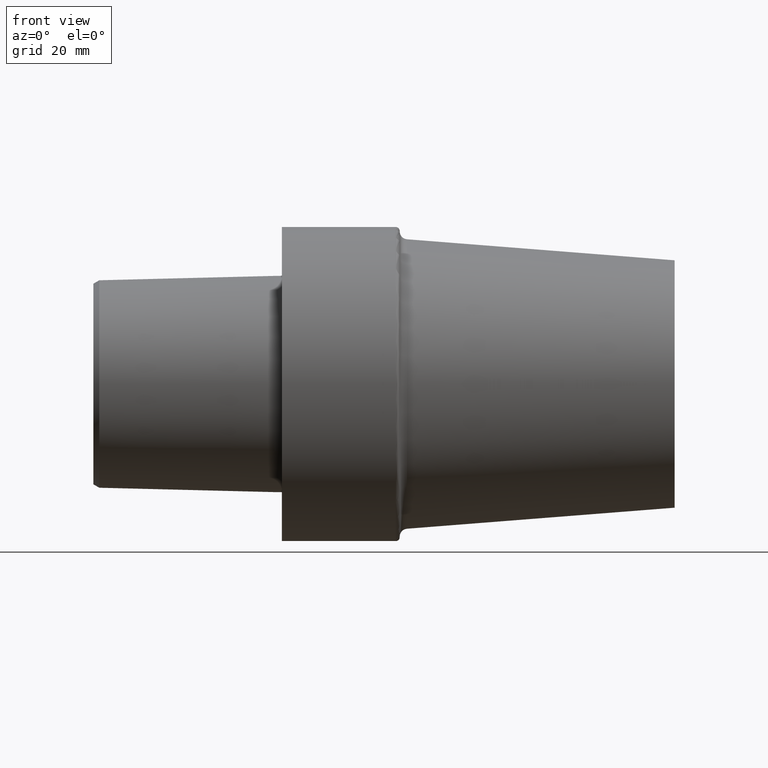
[diagram: clean part render]
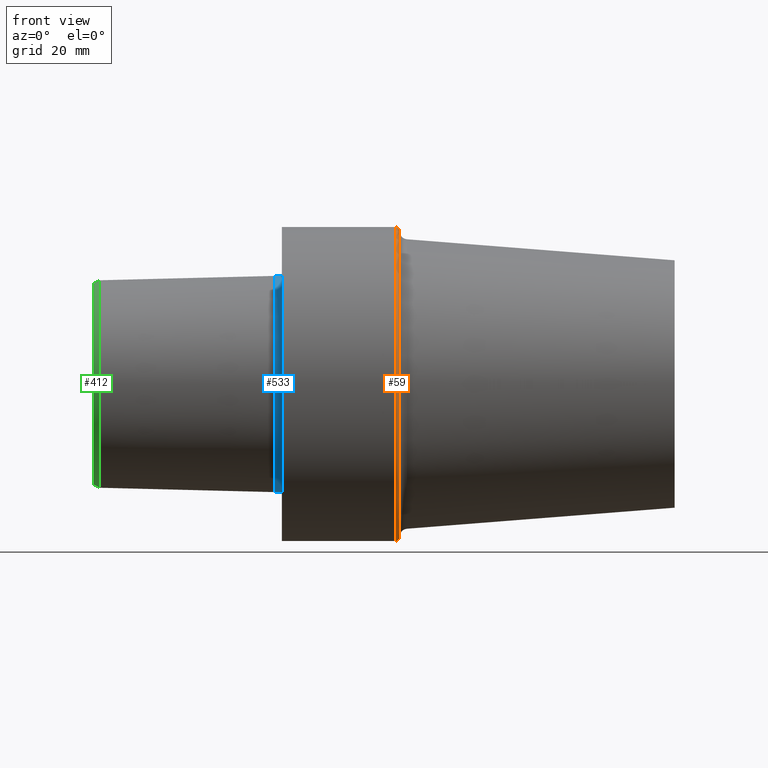
[diagram: same view with three faces highlighted in distinct colors, each labeled with its STEP entity id]
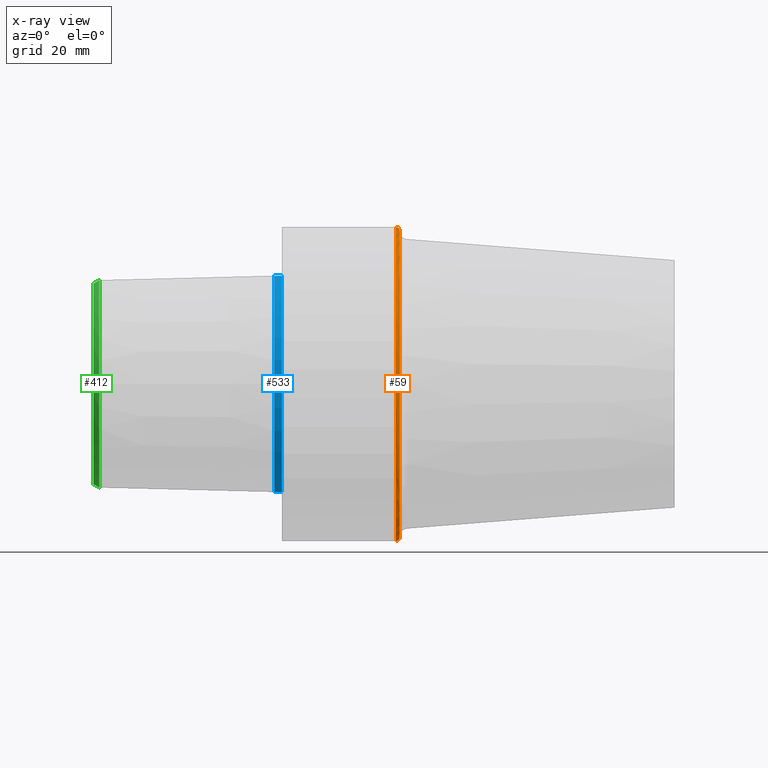
[diagram: x-ray of the same camera — body ghosted, the three highlighted faces saturated]
A machine part, front view with three faces highlighted in distinct colors.
The next image is the same camera in x-ray (body ghosted, the three faces saturated) — at least one of them is partly hidden behind the body in this view.
Their STEP definitions:

[orange] entity #59 — the highlighted toroidal blend (fillet) surface has major radius 38.9925 mm and minor (blend) radius 1 mm.
#33 = EDGE_CURVE ( 'NONE', #74, #287, #507, .T. ) ;
#45 = VERTEX_POINT ( 'NONE', #223 ) ;
#57 = DIRECTION ( 'NONE',  ( 0.000000000000000000, 0.000000000000000000, -1.000000000000000000 ) ) ;
#58 = CARTESIAN_POINT ( 'NONE',  ( 29.99999997209141611, 0.000000000000000000, 0.000000000000000000 ) ) ;
#59 = ADVANCED_FACE ( 'NONE', ( #220 ), #213, .T. ) ;
#74 = VERTEX_POINT ( 'NONE', #385 ) ;
#100 = CARTESIAN_POINT ( 'NONE',  ( 28.99999997311141797, 4.897668707065322260E-15, -39.99249996386929951 ) ) ;
#125 = EDGE_CURVE ( 'NONE', #460, #45, #403, .T. ) ;
#131 = AXIS2_PLACEMENT_3D ( 'NONE', #228, #349, #57 ) ;
#158 = ORIENTED_EDGE ( 'NONE', *, *, #125, .T. ) ;
#167 = EDGE_LOOP ( 'NONE', ( #452, #328, #158, #499 ) ) ;
#182 = CIRCLE ( 'NONE', #488, 38.99249996488934045 ) ;
#206 = AXIS2_PLACEMENT_3D ( 'NONE', #506, #296, #464 ) ;
#213 = TOROIDAL_SURFACE ( 'NONE', #353, 38.99249996488934045, 0.9999999989799999156 ) ;
#220 = FACE_OUTER_BOUND ( 'NONE', #167, .T. ) ;
#223 = CARTESIAN_POINT ( 'NONE',  ( 28.99999997311141797, 0.000000000000000000, 39.99249996386929951 ) ) ;
#228 = CARTESIAN_POINT ( 'NONE',  ( 28.99999997311141797, 0.000000000000000000, 38.99249996488934045 ) ) ;
#262 = CARTESIAN_POINT ( 'NONE',  ( 29.99999997209141611, 0.000000000000000000, 38.99249996488934045 ) ) ;
#280 = EDGE_CURVE ( 'NONE', #287, #45, #462, .T. ) ;
#287 = VERTEX_POINT ( 'NONE', #100 ) ;
#293 = DIRECTION ( 'NONE',  ( 0.000000000000000000, 0.000000000000000000, 1.000000000000000000 ) ) ;
#296 = DIRECTION ( 'NONE',  ( 0.000000000000000000, 1.000000000000000000, 1.224646799147353947E-16 ) ) ;
#312 = DIRECTION ( 'NONE',  ( 0.000000000000000000, 0.000000000000000000, 1.000000000000000000 ) ) ;
#328 = ORIENTED_EDGE ( 'NONE', *, *, #345, .T. ) ;
#341 = DIRECTION ( 'NONE',  ( -1.000000000000000000, 0.000000000000000000, 0.000000000000000000 ) ) ;
#345 = EDGE_CURVE ( 'NONE', #74, #460, #182, .T. ) ;
#349 = DIRECTION ( 'NONE',  ( 0.000000000000000000, -1.000000000000000000, 0.000000000000000000 ) ) ;
#353 = AXIS2_PLACEMENT_3D ( 'NONE', #429, #433, #312 ) ;
#376 = CARTESIAN_POINT ( 'NONE',  ( 28.99999997311141797, 0.000000000000000000, 0.000000000000000000 ) ) ;
#385 = CARTESIAN_POINT ( 'NONE',  ( 29.99999997209141611, 4.836436367170416693E-15, -38.99249996488934045 ) ) ;
#394 = AXIS2_PLACEMENT_3D ( 'NONE', #376, #341, #465 ) ;
#403 = CIRCLE ( 'NONE', #131, 0.9999999989799973621 ) ;
#410 = DIRECTION ( 'NONE',  ( -1.000000000000000000, 0.000000000000000000, 0.000000000000000000 ) ) ;
#429 = CARTESIAN_POINT ( 'NONE',  ( 28.99999997311141797, 0.000000000000000000, 0.000000000000000000 ) ) ;
#433 = DIRECTION ( 'NONE',  ( -1.000000000000000000, 0.000000000000000000, 0.000000000000000000 ) ) ;
#452 = ORIENTED_EDGE ( 'NONE', *, *, #33, .F. ) ;
#460 = VERTEX_POINT ( 'NONE', #262 ) ;
#462 = CIRCLE ( 'NONE', #394, 39.99249996386929951 ) ;
#464 = DIRECTION ( 'NONE',  ( 0.000000000000000000, -1.224646799147358384E-16, 1.000000000000000000 ) ) ;
#465 = DIRECTION ( 'NONE',  ( 0.000000000000000000, 0.000000000000000000, 1.000000000000000000 ) ) ;
#488 = AXIS2_PLACEMENT_3D ( 'NONE', #58, #410, #293 ) ;
#499 = ORIENTED_EDGE ( 'NONE', *, *, #280, .F. ) ;
#506 = CARTESIAN_POINT ( 'NONE',  ( 28.99999997311141797, 4.775204027275495348E-15, -38.99249996488934045 ) ) ;
#507 = CIRCLE ( 'NONE', #206, 0.9999999989799973621 ) ;

[blue] entity #533 — the highlighted cylindrical surface (partial cylindrical patch) has radius 27.5265 mm, axis along (-1, 0, 0).
#26 = CARTESIAN_POINT ( 'NONE',  ( -47.99999995507708661, 0.000000000000000000, 0.000000000000000000 ) ) ;
#28 = ORIENTED_EDGE ( 'NONE', *, *, #401, .F. ) ;
#46 = CIRCLE ( 'NONE', #105, 27.52650806658465399 ) ;
#47 = CARTESIAN_POINT ( 'NONE',  ( 2.691416640612785863E-09, 0.000000000000000000, 27.52650806658465399 ) ) ;
#52 = DIRECTION ( 'NONE',  ( -1.000000000000000000, 0.000000000000000000, 0.000000000000000000 ) ) ;
#92 = CARTESIAN_POINT ( 'NONE',  ( 2.691416640612785863E-09, 3.371024999544667893E-15, -27.52650806658465399 ) ) ;
#105 = AXIS2_PLACEMENT_3D ( 'NONE', #134, #52, #212 ) ;
#115 = ORIENTED_EDGE ( 'NONE', *, *, #495, .F. ) ;
#134 = CARTESIAN_POINT ( 'NONE',  ( -1.940694415329066391, 0.000000000000000000, 0.000000000000000000 ) ) ;
#135 = EDGE_CURVE ( 'NONE', #321, #377, #454, .T. ) ;
#143 = DIRECTION ( 'NONE',  ( 0.000000000000000000, 0.000000000000000000, 1.000000000000000000 ) ) ;
#178 = DIRECTION ( 'NONE',  ( -1.000000000000000000, 0.000000000000000000, 0.000000000000000000 ) ) ;
#179 = CARTESIAN_POINT ( 'NONE',  ( -47.99999995507708661, 0.000000000000000000, 27.52650806658465399 ) ) ;
#202 = EDGE_LOOP ( 'NONE', ( #115, #317, #402, #28 ) ) ;
#208 = LINE ( 'NONE', #179, #380 ) ;
#212 = DIRECTION ( 'NONE',  ( 0.000000000000000000, 0.000000000000000000, 1.000000000000000000 ) ) ;
#229 = EDGE_CURVE ( 'NONE', #377, #333, #208, .T. ) ;
#230 = CARTESIAN_POINT ( 'NONE',  ( -47.99999995507708661, 3.371024999544667893E-15, -27.52650806658465399 ) ) ;
#261 = CARTESIAN_POINT ( 'NONE',  ( 2.691416640612785863E-09, 0.000000000000000000, 0.000000000000000000 ) ) ;
#263 = FACE_OUTER_BOUND ( 'NONE', #202, .T. ) ;
#269 = LINE ( 'NONE', #230, #463 ) ;
#306 = DIRECTION ( 'NONE',  ( -1.000000000000000000, 0.000000000000000000, 0.000000000000000000 ) ) ;
#311 = DIRECTION ( 'NONE',  ( -1.000000000000000000, 0.000000000000000000, 0.000000000000000000 ) ) ;
#317 = ORIENTED_EDGE ( 'NONE', *, *, #135, .T. ) ;
#321 = VERTEX_POINT ( 'NONE', #92 ) ;
#333 = VERTEX_POINT ( 'NONE', #426 ) ;
#355 = DIRECTION ( 'NONE',  ( 0.000000000000000000, 0.000000000000000000, 1.000000000000000000 ) ) ;
#377 = VERTEX_POINT ( 'NONE', #47 ) ;
#380 = VECTOR ( 'NONE', #178, 1000.000000000000000 ) ;
#401 = EDGE_CURVE ( 'NONE', #534, #333, #46, .T. ) ;
#402 = ORIENTED_EDGE ( 'NONE', *, *, #229, .T. ) ;
#404 = AXIS2_PLACEMENT_3D ( 'NONE', #26, #311, #355 ) ;
#426 = CARTESIAN_POINT ( 'NONE',  ( -1.940694415329066391, 0.000000000000000000, 27.52650806658465399 ) ) ;
#432 = AXIS2_PLACEMENT_3D ( 'NONE', #261, #520, #143 ) ;
#454 = CIRCLE ( 'NONE', #432, 27.52650806658465399 ) ;
#463 = VECTOR ( 'NONE', #306, 1000.000000000000000 ) ;
#483 = CARTESIAN_POINT ( 'NONE',  ( -1.940694415329066391, 3.371024999544667893E-15, -27.52650806658465399 ) ) ;
#485 = CYLINDRICAL_SURFACE ( 'NONE', #404, 27.52650806658465399 ) ;
#495 = EDGE_CURVE ( 'NONE', #321, #534, #269, .T. ) ;
#520 = DIRECTION ( 'NONE',  ( -1.000000000000000000, 0.000000000000000000, 0.000000000000000000 ) ) ;
#533 = ADVANCED_FACE ( 'NONE', ( #263 ), #485, .T. ) ;
#534 = VERTEX_POINT ( 'NONE', #483 ) ;

[green] entity #412 — the highlighted conical surface has half-angle 30 deg.
#6 = EDGE_CURVE ( 'NONE', #130, #38, #372, .T. ) ;
#7 = CARTESIAN_POINT ( 'NONE',  ( -46.49999994987858543, 3.234610638726928974E-15, 26.41260027772084129 ) ) ;
#16 = ORIENTED_EDGE ( 'NONE', *, *, #6, .F. ) ;
#18 = CARTESIAN_POINT ( 'NONE',  ( -46.49999994987858543, 0.000000000000000000, 0.000000000000000000 ) ) ;
#19 = DIRECTION ( 'NONE',  ( 0.8660254037844387076, 0.000000000000000000, -0.4999999999999998890 ) ) ;
#38 = VERTEX_POINT ( 'NONE', #420 ) ;
#49 = DIRECTION ( 'NONE',  ( 0.000000000000000000, 0.000000000000000000, 1.000000000000000000 ) ) ;
#56 = AXIS2_PLACEMENT_3D ( 'NONE', #299, #468, #94 ) ;
#76 = EDGE_CURVE ( 'NONE', #363, #130, #173, .T. ) ;
#77 = CONICAL_SURFACE ( 'NONE', #56, 26.41260027772084129, 0.5235987755982992597 ) ;
#78 = EDGE_LOOP ( 'NONE', ( #16, #256, #136, #456 ) ) ;
#85 = EDGE_CURVE ( 'NONE', #363, #470, #476, .T. ) ;
#88 = CIRCLE ( 'NONE', #354, 26.41260027772084129 ) ;
#94 = DIRECTION ( 'NONE',  ( 0.000000000000000000, 0.000000000000000000, -1.000000000000000000 ) ) ;
#98 = CARTESIAN_POINT ( 'NONE',  ( -47.99999995507708661, 3.181581876606904120E-15, 25.54657487093501445 ) ) ;
#130 = VERTEX_POINT ( 'NONE', #98 ) ;
#132 = DIRECTION ( 'NONE',  ( -1.000000000000000000, 0.000000000000000000, 0.000000000000000000 ) ) ;
#136 = ORIENTED_EDGE ( 'NONE', *, *, #85, .T. ) ;
#173 = CIRCLE ( 'NONE', #423, 25.54657487093501445 ) ;
#239 = VECTOR ( 'NONE', #338, 1000.000000000000000 ) ;
#256 = ORIENTED_EDGE ( 'NONE', *, *, #76, .F. ) ;
#299 = CARTESIAN_POINT ( 'NONE',  ( -46.49999994987858543, 0.000000000000000000, 0.000000000000000000 ) ) ;
#303 = CARTESIAN_POINT ( 'NONE',  ( -46.49999994987858543, 0.000000000000000000, -26.41260027772084129 ) ) ;
#338 = DIRECTION ( 'NONE',  ( 0.8660254037844387076, 6.123233995736768501E-17, 0.4999999999999998890 ) ) ;
#339 = FACE_OUTER_BOUND ( 'NONE', #78, .T. ) ;
#343 = CARTESIAN_POINT ( 'NONE',  ( -47.99999995507708661, 0.000000000000000000, 0.000000000000000000 ) ) ;
#354 = AXIS2_PLACEMENT_3D ( 'NONE', #18, #132, #49 ) ;
#358 = CARTESIAN_POINT ( 'NONE',  ( -46.49999994987858543, 0.000000000000000000, -26.41260027772084129 ) ) ;
#363 = VERTEX_POINT ( 'NONE', #416 ) ;
#372 = LINE ( 'NONE', #7, #239 ) ;
#374 = EDGE_CURVE ( 'NONE', #470, #38, #88, .T. ) ;
#383 = DIRECTION ( 'NONE',  ( -1.000000000000000000, 0.000000000000000000, 0.000000000000000000 ) ) ;
#412 = ADVANCED_FACE ( 'NONE', ( #339 ), #77, .T. ) ;
#416 = CARTESIAN_POINT ( 'NONE',  ( -47.99999995507708661, 0.000000000000000000, -25.54657487093501445 ) ) ;
#420 = CARTESIAN_POINT ( 'NONE',  ( -46.49999994987858543, 3.302817819135798828E-15, 26.41260027772084129 ) ) ;
#423 = AXIS2_PLACEMENT_3D ( 'NONE', #343, #383, #515 ) ;
#456 = ORIENTED_EDGE ( 'NONE', *, *, #374, .T. ) ;
#468 = DIRECTION ( 'NONE',  ( 1.000000000000000000, 0.000000000000000000, 0.000000000000000000 ) ) ;
#470 = VERTEX_POINT ( 'NONE', #358 ) ;
#476 = LINE ( 'NONE', #303, #500 ) ;
#500 = VECTOR ( 'NONE', #19, 1000.000000000000000 ) ;
#515 = DIRECTION ( 'NONE',  ( 0.000000000000000000, 0.000000000000000000, 1.000000000000000000 ) ) ;